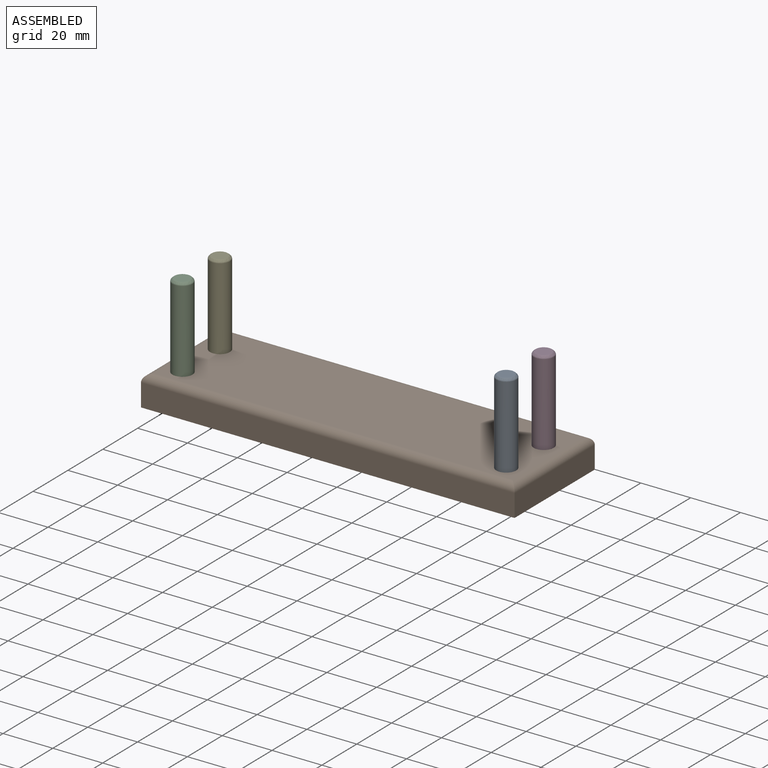
[diagram: assembled view]
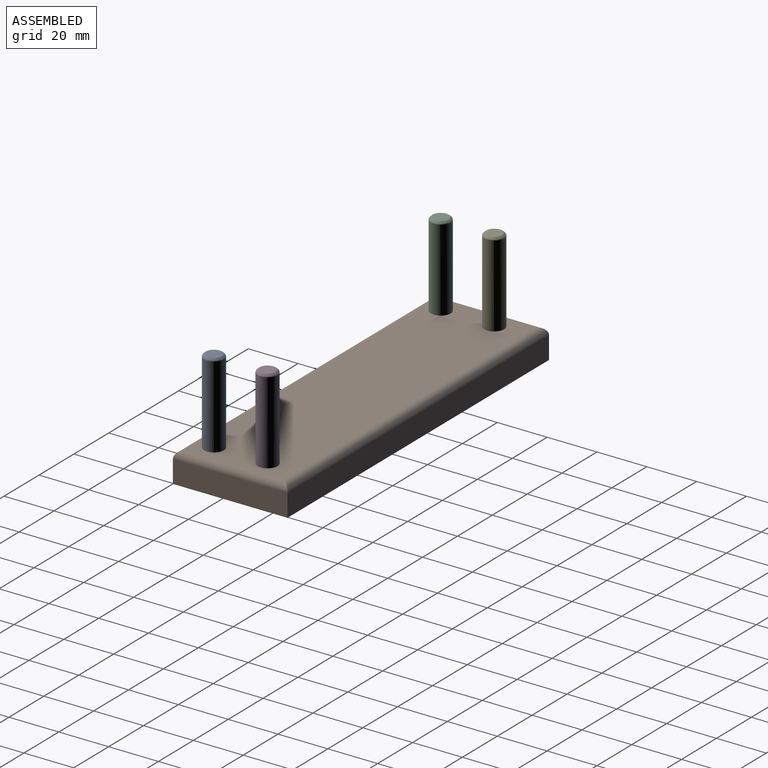
[diagram: assembled view, second angle]
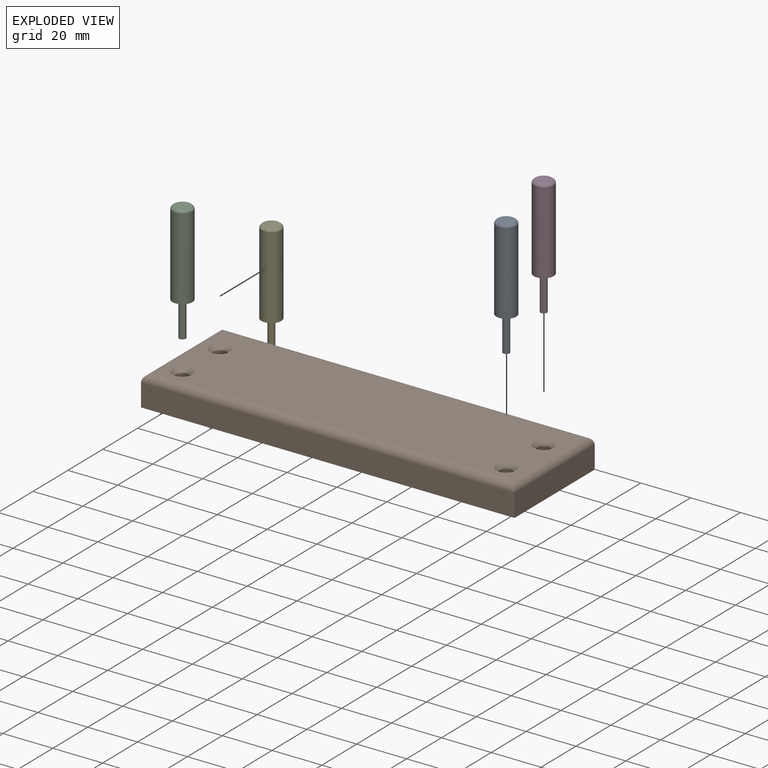
[diagram: exploded view]
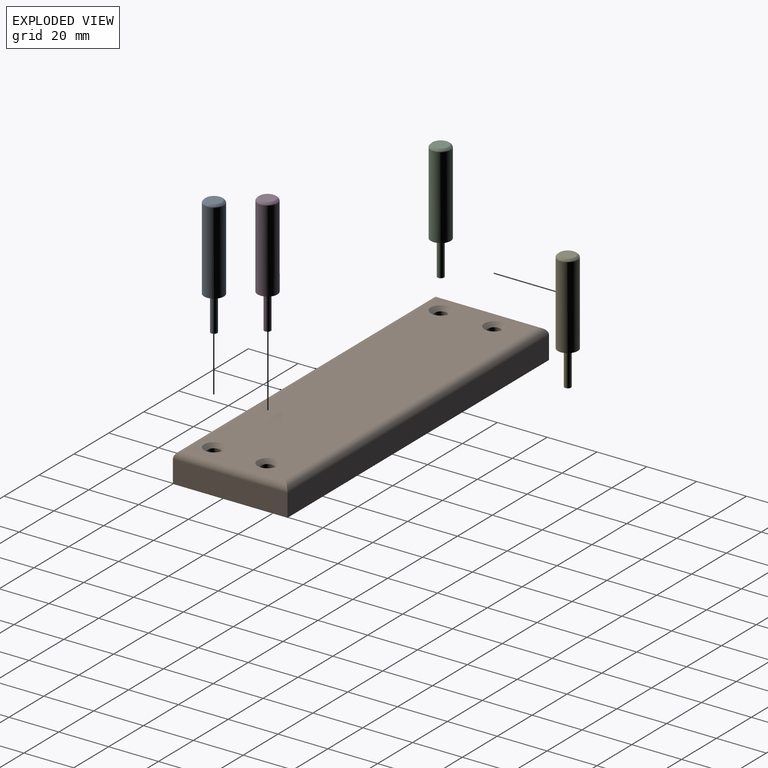
[diagram: exploded view, second angle]
ASSEMBLY  parts=5 mates=8
PART A: 6 faces, bbox 8x8x48 mm
  f0: cylinder r=4mm len=33mm, axis (0,0,-1), area 829.4mm2, adj f3,f5
  f1: plane 6.01x6.01mm, normal (0,0,-1), area 28.3mm2, adj f5
  f2: cylinder r=1.32mm len=14mm, axis (0,0,1), area 115.9mm2, adj f3,f4
  f3: plane 8x8mm, normal (0,0,1), area 44.8mm2, adj f0,f2
  f4: plane 2.64x2.64mm, normal (0,0,1), area 5.5mm2, adj f2
  f5: bspline ~8x8mm, area 33.5mm2, adj f0,f1
PART B: 18 faces, bbox 150x46x12 mm
  f0: plane 150x9mm, normal (0,1,0), area 1350mm2, adj f1,f3,f5,f6
  f1: plane 46x9mm, normal (-1,0,0), area 414mm2, adj f0,f2,f5,f7
  f2: plane 150x9mm, normal (0,-1,0), area 1350mm2, adj f1,f3,f5,f9
  f3: plane 46x9mm, normal (1,0,0), area 414mm2, adj f0,f2,f5,f8
  f4: plane 144x40mm, normal (0,0,1), area 5558.9mm2, adj f6,f7,f8,f9,f14,f15,f16,f17
  f5: plane 150x46mm, normal (0,0,-1), area 6821.5mm2, adj f0,f1,f2,f3,f10,f11,f12,f13
  f6: cylinder r=3mm len=150mm, axis (1,0,0), area 696.6mm2, adj f0,f4,f7,f8
  f7: cylinder r=3mm len=46mm, axis (0,1,0), area 206.5mm2, adj f1,f4,f6,f9
  f8: cylinder r=3mm len=46mm, axis (0,-1,0), area 206.5mm2, adj f3,f4,f6,f9
  f9: cylinder r=3mm len=150mm, axis (-1,0,0), area 696.6mm2, adj f2,f4,f7,f8
  f10: cylinder r=2.5mm len=10.5mm, axis (0,0,1), area 164.9mm2, adj f5,f17
  f11: cylinder r=2.5mm len=10.5mm, axis (0,0,1), area 164.9mm2, adj f5,f16
  f12: cylinder r=2.5mm len=10.5mm, axis (0,0,1), area 164.9mm2, adj f5,f15
  f13: cylinder r=2.5mm len=10.5mm, axis (0,0,1), area 164.9mm2, adj f5,f14
  f14: cone r=2.5mm half-angle=45deg, axis (0,0,1), area 43.3mm2, adj f4,f13
  f15: cone r=2.5mm half-angle=45deg, axis (0,0,1), area 43.3mm2, adj f4,f12
  f16: cone r=2.5mm half-angle=45deg, axis (0,0,1), area 43.3mm2, adj f4,f11
  f17: cone r=2.5mm half-angle=45deg, axis (0,0,1), area 43.3mm2, adj f4,f10
PART C: same geometry as A
PART D: same geometry as A
PART E: same geometry as A
PLACE A rot(axis=(1,0,0),180deg) t=(67.92,-94.15,24.93)mm
PLACE B t=(2.92,-80.66,-21.07)mm
PLACE C rot(axis=(1,0,0),180deg) t=(-62.08,-94.15,24.93)mm
PLACE D rot(axis=(0.71,0.71,0),180deg) t=(67.92,-72.66,24.93)mm
PLACE E rot(axis=(1,0,0),180deg) t=(-62.08,-72.66,24.93)mm
MATE pin_slot C.f0 <-> B.f13  axis (0,0,1) through (-62.08,-94.15,-9.07)mm
MATE slider E.f2 <-> E.f0  axis (0,0,-1) through (-62.08,-72.66,-23.07)mm
MATE pin_slot E.f0 <-> B.f10  axis (0,0,-1) through (-62.08,-72.66,-9.07)mm
MATE pin_slot D.f0 <-> D.f2  axis (0,0,-1) through (67.92,-72.66,-9.07)mm
MATE pin_slot D.f2 <-> B.f11  axis (0,0,-1) through (67.92,-72.66,-23.07)mm
MATE pin_slot D.f0 <-> D.f2  axis (0,0,1) through (67.92,-72.66,-9.07)mm
MATE pin_slot A.f0 <-> B.f12  axis (0,0,1) through (67.92,-94.15,-9.07)mm
MATE pin_slot D.f0 <-> B.f11  axis (0,0,-1) through (67.92,-72.66,-9.07)mm
